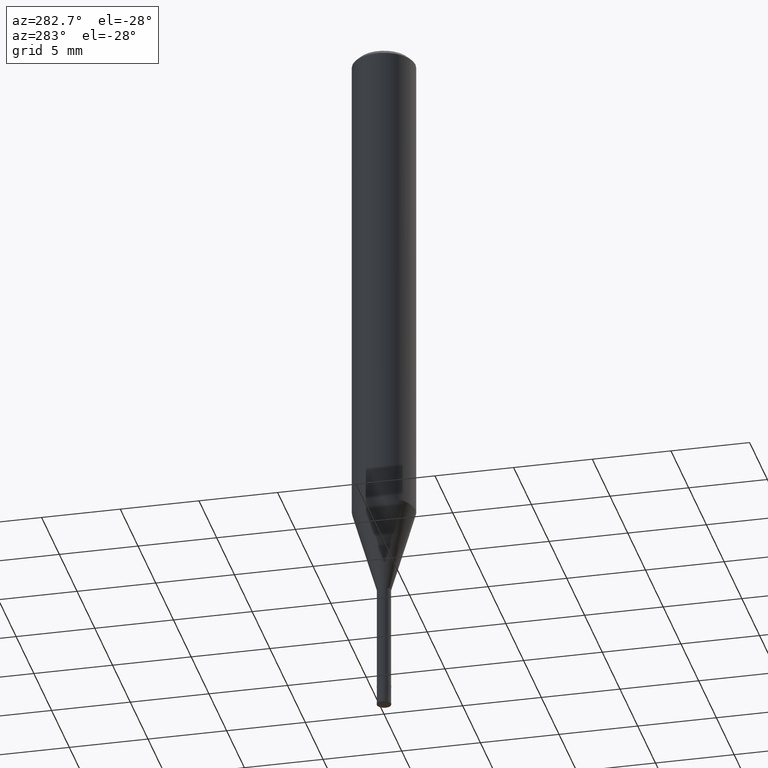
[diagram: clean part render]
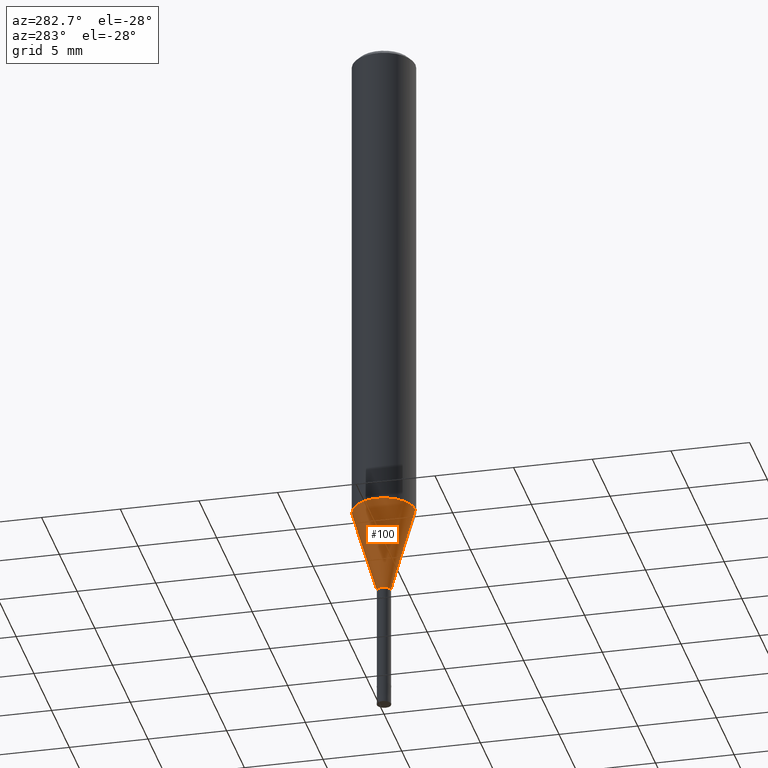
[diagram: same view with one face highlighted and labeled with its STEP entity id]
A machine part, auxiliary view. The second image highlights one B-rep face of the part: STEP entity #100.
In plain terms, the highlighted conical surface has half-angle 16.001 deg.
Its self-contained STEP definition (entity closure, byte-faithful):
#100=ADVANCED_FACE('',(#238),#239,.T.);
#130=VERTEX_POINT('',#272);
#140=EDGE_CURVE('',#188,#144,#285,.T.);
#144=VERTEX_POINT('',#290);
#170=VERTEX_POINT('',#319);
#188=VERTEX_POINT('',#338);
#194=EDGE_CURVE('',#188,#130,#345,.T.);
#200=EDGE_CURVE('',#170,#130,#352,.T.);
#204=EDGE_CURVE('',#144,#170,#356,.T.);
#238=FACE_OUTER_BOUND('',#384,.T.);
#239=CONICAL_SURFACE('',#385,1.21995,0.279270532486472);
#272=CARTESIAN_POINT('',(0.0,0.43995,-37.0));
#285=LINE('',#444,#445);
#290=CARTESIAN_POINT('',(2.44915147732706E-016,-1.99995,-31.56));
#319=CARTESIAN_POINT('',(0.0,1.99995,-31.56));
#338=CARTESIAN_POINT('',(5.38765565364155E-017,-0.43995,-37.0));
#345=CIRCLE('',#519,0.43995);
#352=LINE('',#528,#529);
#356=CIRCLE('',#535,1.99995);
#384=EDGE_LOOP('',(#554,#555,#556,#557));
#385=AXIS2_PLACEMENT_3D('',#558,#559,#560);
#444=CARTESIAN_POINT('',(1.49395852134561E-016,-1.21995,-34.28));
#445=VECTOR('',#613,1.0);
#519=AXIS2_PLACEMENT_3D('',#685,#686,#687);
#528=CARTESIAN_POINT('',(-1.49395852134561E-016,1.21995,-34.28));
#529=VECTOR('',#699,1.0);
#535=AXIS2_PLACEMENT_3D('',#703,#704,#705);
#554=ORIENTED_EDGE('',*,*,#200,.T.);
#555=ORIENTED_EDGE('',*,*,#194,.F.);
#556=ORIENTED_EDGE('',*,*,#140,.T.);
#557=ORIENTED_EDGE('',*,*,#204,.T.);
#558=CARTESIAN_POINT('',(0.0,0.0,-34.28));
#559=DIRECTION('',(-0.0,-0.0,1.0));
#560=DIRECTION('',(0.0,1.0,0.0));
#613=DIRECTION('',(3.37568272216048E-017,-0.275654516377767,0.96125677506093));
#685=CARTESIAN_POINT('',(0.0,0.0,-37.0));
#686=DIRECTION('',(0.0,0.0,-1.0));
#687=DIRECTION('',(0.0,1.0,0.0));
#699=DIRECTION('',(3.37568272216048E-017,-0.275654516377767,-0.96125677506093));
#703=CARTESIAN_POINT('',(0.0,0.0,-31.56));
#704=DIRECTION('',(0.0,0.0,-1.0));
#705=DIRECTION('',(0.0,1.0,0.0));